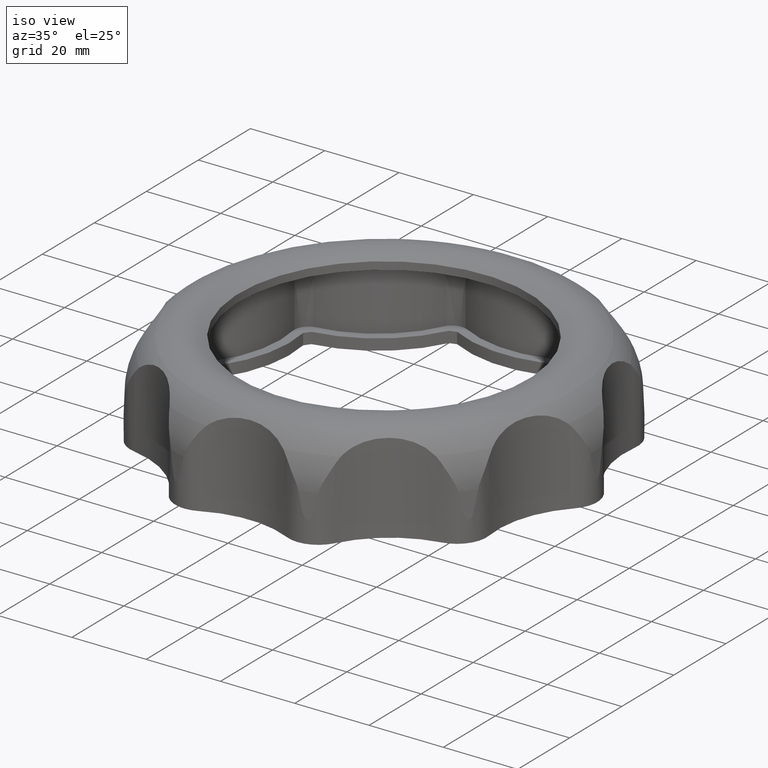
[diagram: clean part render]
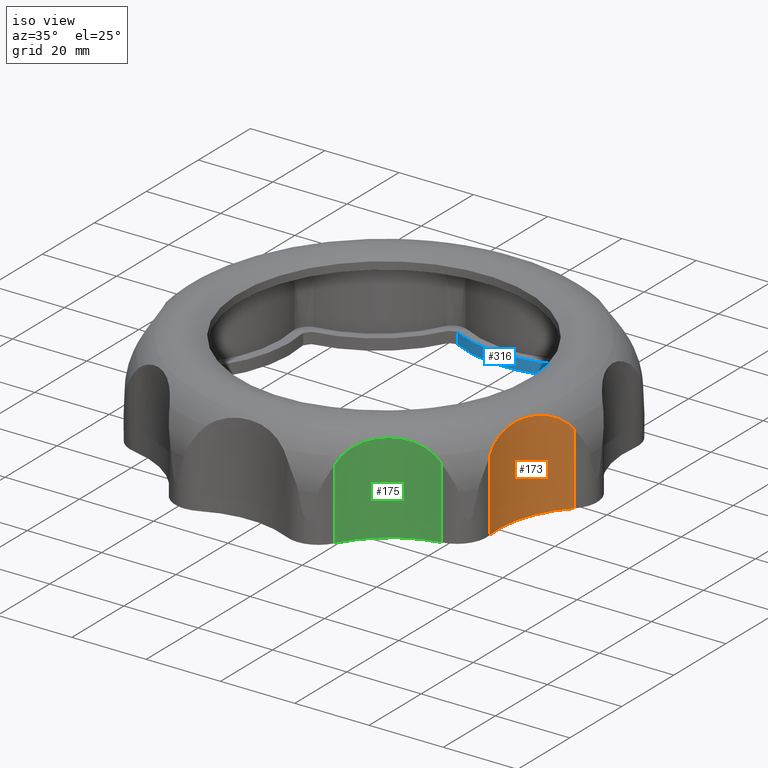
[diagram: same view with three faces highlighted in distinct colors, each labeled with its STEP entity id]
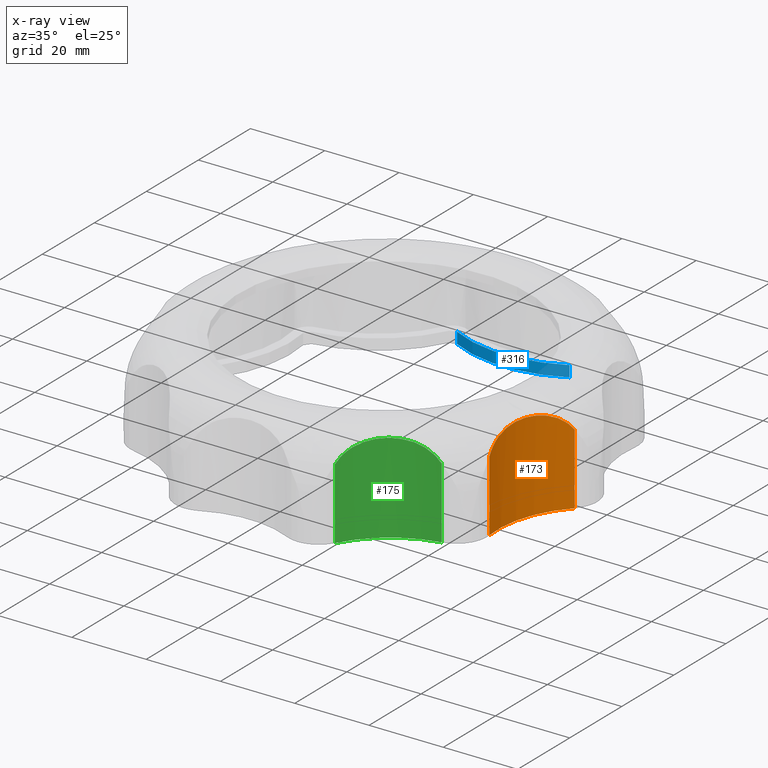
[diagram: x-ray of the same camera — body ghosted, the three highlighted faces saturated]
A machine part, iso view with three faces highlighted in distinct colors.
The next image is the same camera in x-ray (body ghosted, the three faces saturated) — at least one of them is partly hidden behind the body in this view.
Their STEP definitions:

[orange] entity #173 — the highlighted cylindrical surface (partial cylindrical patch) has radius 27 mm, axis along (0, 0, -1).
#173 = ADVANCED_FACE( '', ( #2430 ), #2431, .F. );
#2430 = FACE_OUTER_BOUND( '', #6730, .T. );
#2431 = CYLINDRICAL_SURFACE( '', #6731, 27.0000000000000 );
#6730 = EDGE_LOOP( '', ( #13505, #13506, #13507, #13508, #13509, #13510 ) );
#6731 = AXIS2_PLACEMENT_3D( '', #13511, #13512, #13513 );
#13505 = ORIENTED_EDGE( '', *, *, #31965, .F. );
#13506 = ORIENTED_EDGE( '', *, *, #29841, .T. );
#13507 = ORIENTED_EDGE( '', *, *, #31956, .T. );
#13508 = ORIENTED_EDGE( '', *, *, #31969, .T. );
#13509 = ORIENTED_EDGE( '', *, *, #31970, .T. );
#13510 = ORIENTED_EDGE( '', *, *, #31971, .T. );
#13511 = CARTESIAN_POINT( '', ( 74.6579363793585, -24.2578337864569, -189.776286870924 ) );
#13512 = DIRECTION( '', ( 0.000000000000000, 0.000000000000000, -1.00000000000000 ) );
#13513 = DIRECTION( '', ( -0.990570551828683, -0.137003583346637, 0.000000000000000 ) );
#29841 = EDGE_CURVE( '', #36174, #36172, #36175, .F. );
#31956 = EDGE_CURVE( '', #36172, #40313, #40314, .T. );
#31965 = EDGE_CURVE( '', #36174, #40329, #40330, .T. );
#31969 = EDGE_CURVE( '', #40313, #40336, #40337, .T. );
#31970 = EDGE_CURVE( '', #40336, #40338, #40339, .T. );
#31971 = EDGE_CURVE( '', #40338, #40329, #40340, .T. );
#36172 = VERTEX_POINT( '', #46708 );
#36174 = VERTEX_POINT( '', #46710 );
#36175 = CIRCLE( '', #46711, 27.0000000000000 );
#40313 = VERTEX_POINT( '', #57834 );
#40314 = LINE( '', #57835, #57836 );
#40329 = VERTEX_POINT( '', #57938 );
#40330 = LINE( '', #57939, #57940 );
#40336 = VERTEX_POINT( '', #58001 );
#40337 = B_SPLINE_CURVE_WITH_KNOTS( '', 3, ( #58002, #58003, #58004, #58005 ), .UNSPECIFIED., .F., .F., ( 4, 4 ), ( 3.70980942328956E-007, 0.00218637348059707 ), .UNSPECIFIED. );
#40338 = VERTEX_POINT( '', #58006 );
#40339 = B_SPLINE_CURVE_WITH_KNOTS( '', 3, ( #58007, #58008, #58009, #58010, #58011, #58012, #58013, #58014, #58015, #58016, #58017, #58018, #58019, #58020, #58021, #58022, #58023, #58024, #58025, #58026, #58027, #58028, #58029, #58030, #58031 ), .UNSPECIFIED., .F., .F., ( 4, 2, 2, 2, 2, 2, 1, 2, 2, 2, 2, 2, 4 ), ( 2.99828316993370E-007, 0.00285867238819534, 0.00428785866813452, 0.00571704494807370, 0.00857541750795205, 0.0100046037878912, 0.0114337900678304, 0.0128629763477696, 0.0142921626277088, 0.0171505351875872, 0.0185797214675263, 0.0200089077474655, 0.0228672803073439 ), .UNSPECIFIED. );
#40340 = B_SPLINE_CURVE_WITH_KNOTS( '', 3, ( #58032, #58033, #58034, #58035 ), .UNSPECIFIED., .F., .F., ( 4, 4 ), ( 2.95585429276969E-007, 0.00218629891832316 ), .UNSPECIFIED. );
#46708 = CARTESIAN_POINT( '', ( 55.1947233567197, -5.54464755761343, -25.0456068538120 ) );
#46710 = CARTESIAN_POINT( '', ( 47.9125314799842, -27.9569305368162, -25.0456068538120 ) );
#46711 = AXIS2_PLACEMENT_3D( '', #74129, #74130, #74131 );
#57834 = CARTESIAN_POINT( '', ( 55.1947233567119, -5.54464755762175, -5.85717139452890 ) );
#57835 = CARTESIAN_POINT( '', ( 55.1947233567197, -5.54464755761343, -189.776286870924 ) );
#57836 = VECTOR( '', #74427, 1000.00000000000 );
#57938 = CARTESIAN_POINT( '', ( 47.9125314799842, -27.9569305368162, -5.85717205826600 ) );
#57939 = CARTESIAN_POINT( '', ( 47.9125314799842, -27.9569305368162, -189.776286870924 ) );
#57940 = VECTOR( '', #74430, 1000.00000000000 );
#58001 = CARTESIAN_POINT( '', ( 54.1989996147473, -6.63875587466969, -4.24780252792270 ) );
#58002 = CARTESIAN_POINT( '', ( 55.1947233567119, -5.54464755762135, -5.85717139452865 ) );
#58003 = CARTESIAN_POINT( '', ( 54.8859988724536, -5.86574575698448, -5.27672770354340 ) );
#58004 = CARTESIAN_POINT( '', ( 54.5517459930731, -6.22915351725626, -4.74084185494322 ) );
#58005 = CARTESIAN_POINT( '', ( 54.1989996147472, -6.63875587466937, -4.24780252792253 ) );
#58006 = CARTESIAN_POINT( '', ( 47.7500747064637, -26.4865060800771, -4.24780252792270 ) );
#58007 = CARTESIAN_POINT( '', ( 54.1989996147472, -6.63875587466956, -4.24780252792268 ) );
#58008 = CARTESIAN_POINT( '', ( 53.7208593773605, -7.19396318632837, -3.61225612978650 ) );
#58009 = CARTESIAN_POINT( '', ( 53.2258120750429, -7.81470778294322, -3.08240889827173 ) );
#58010 = CARTESIAN_POINT( '', ( 52.4869430204637, -8.84273924504700, -2.41506273051541 ) );
#58011 = CARTESIAN_POINT( '', ( 52.2411665023910, -9.20165250428693, -2.21406914540628 ) );
#58012 = CARTESIAN_POINT( '', ( 51.7546376443556, -9.95262237334957, -1.85187803921905 ) );
#58013 = CARTESIAN_POINT( '', ( 51.5160411823993, -10.3415414595719, -1.69238300752716 ) );
#58014 = CARTESIAN_POINT( '', ( 50.8268523663201, -11.5329975792221, -1.27634069070291 ) );
#58015 = CARTESIAN_POINT( '', ( 50.3990291374894, -12.3659591733890, -1.07842472565420 ) );
#58016 = CARTESIAN_POINT( '', ( 49.8145796051292, -13.6731543022217, -0.880968779001268 ) );
#58017 = CARTESIAN_POINT( '', ( 49.6298534703620, -14.1176184552536, -0.832260588293811 ) );
#58018 = CARTESIAN_POINT( '', ( 49.2863123656774, -15.0106939058683, -0.768070653094216 ) );
#58019 = CARTESIAN_POINT( '', ( 48.9670044950928, -15.9115622100116, -0.736511588674260 ) );
#58020 = CARTESIAN_POINT( '', ( 48.6959349621179, -16.8279455449997, -0.768170203724727 ) );
#58021 = CARTESIAN_POINT( '', ( 48.4490758183095, -17.7521143826679, -0.832431800201903 ) );
#58022 = CARTESIAN_POINT( '', ( 48.3373340729019, -18.2201554525790, -0.881169731565880 ) );
#58023 = CARTESIAN_POINT( '', ( 48.0419930624103, -19.6207848217476, -1.07867686076912 ) );
#58024 = CARTESIAN_POINT( '', ( 47.8993609645618, -20.5421159972954, -1.27614566043664 ) );
#58025 = CARTESIAN_POINT( '', ( 47.7572770269268, -21.8995493180482, -1.68770865475096 ) );
#58026 = CARTESIAN_POINT( '', ( 47.7219165916782, -22.3478777835019, -1.84432545056501 ) );
#58027 = CARTESIAN_POINT( '', ( 47.6736849582215, -23.2344720828578, -2.20192377785716 ) );
#58028 = CARTESIAN_POINT( '', ( 47.6608344745040, -23.6753755234064, -2.40434584921152 ) );
#58029 = CARTESIAN_POINT( '', ( 47.6534740702647, -24.9578987505156, -3.07820527410402 ) );
#58030 = CARTESIAN_POINT( '', ( 47.6895740516455, -25.7560517842053, -3.61204866731715 ) );
#58031 = CARTESIAN_POINT( '', ( 47.7500747064636, -26.4865060800772, -4.24780252792265 ) );
#58032 = CARTESIAN_POINT( '', ( 47.7500747064635, -26.4865060800774, -4.24780252792250 ) );
#58033 = CARTESIAN_POINT( '', ( 47.7946943098423, -27.0252205959130, -4.74084197301891 ) );
#58034 = CARTESIAN_POINT( '', ( 47.8515048741557, -27.5156927448184, -5.27672802923006 ) );
#58035 = CARTESIAN_POINT( '', ( 47.9125314799841, -27.9569305368164, -5.85717205826580 ) );
#74129 = CARTESIAN_POINT( '', ( 74.6579363793585, -24.2578337864569, -25.0456068538120 ) );
#74130 = DIRECTION( '', ( 1.89212087375327E-017, -5.82334926349610E-017, 1.00000000000000 ) );
#74131 = DIRECTION( '', ( 0.309016994374947, -0.951056516295154, -6.12303176911189E-017 ) );
#74427 = DIRECTION( '', ( 0.000000000000000, 0.000000000000000, 1.00000000000000 ) );
#74430 = DIRECTION( '', ( 0.000000000000000, 0.000000000000000, 1.00000000000000 ) );

[blue] entity #316 — the highlighted cylindrical surface (partial cylindrical patch) has radius 32.5 mm, axis along (0, 0, -1).
#316 = ADVANCED_FACE( '', ( #2725 ), #2726, .T. );
#2725 = FACE_OUTER_BOUND( '', #7025, .T. );
#2726 = CYLINDRICAL_SURFACE( '', #7026, 32.5000000000000 );
#7025 = EDGE_LOOP( '', ( #15330, #15331, #15332, #15333 ) );
#7026 = AXIS2_PLACEMENT_3D( '', #15334, #15335, #15336 );
#15330 = ORIENTED_EDGE( '', *, *, #31719, .T. );
#15331 = ORIENTED_EDGE( '', *, *, #31841, .F. );
#15332 = ORIENTED_EDGE( '', *, *, #29812, .F. );
#15333 = ORIENTED_EDGE( '', *, *, #32985, .T. );
#15334 = CARTESIAN_POINT( '', ( -2.01068044158870E-007, 78.5000004297295, -25.0456068538120 ) );
#15335 = DIRECTION( '', ( 0.000000000000000, 0.000000000000000, -1.00000000000000 ) );
#15336 = DIRECTION( '', ( -0.897086510246755, 0.441854945806086, 0.000000000000000 ) );
#29812 = EDGE_CURVE( '', #36115, #36116, #36117, .T. );
#31719 = EDGE_CURVE( '', #39922, #39923, #39924, .T. );
#31841 = EDGE_CURVE( '', #36116, #39923, #40165, .T. );
#32985 = EDGE_CURVE( '', #36115, #39922, #42220, .T. );
#36115 = VERTEX_POINT( '', #46651 );
#36116 = VERTEX_POINT( '', #46652 );
#36117 = CIRCLE( '', #46653, 32.5000000000000 );
#39922 = VERTEX_POINT( '', #56698 );
#39923 = VERTEX_POINT( '', #56699 );
#39924 = CIRCLE( '', #56700, 32.5000000000000 );
#40165 = LINE( '', #57182, #57183 );
#42220 = LINE( '', #63460, #63461 );
#46651 = CARTESIAN_POINT( '', ( 15.1463783172826, 49.7452231261429, -25.0456068538120 ) );
#46652 = CARTESIAN_POINT( '', ( -15.1463785721150, 49.7452230485517, -25.0456068538120 ) );
#46653 = AXIS2_PLACEMENT_3D( '', #74042, #74043, #74044 );
#56698 = CARTESIAN_POINT( '', ( 15.1463783172826, 49.7452231261429, -22.0456068538120 ) );
#56699 = CARTESIAN_POINT( '', ( -15.1463785721150, 49.7452230485517, -22.0456068538120 ) );
#56700 = AXIS2_PLACEMENT_3D( '', #74202, #74203, #74204 );
#57182 = CARTESIAN_POINT( '', ( -15.1463785721150, 49.7452230485517, -25.0456068538120 ) );
#57183 = VECTOR( '', #74326, 1000.00000000000 );
#63460 = CARTESIAN_POINT( '', ( 15.1463783172826, 49.7452231261429, -25.0456068538120 ) );
#63461 = VECTOR( '', #74603, 1000.00000000000 );
#74042 = CARTESIAN_POINT( '', ( -2.01068044158870E-007, 78.5000004297295, -25.0456068538120 ) );
#74043 = DIRECTION( '', ( 0.000000000000000, 0.000000000000000, -1.00000000000000 ) );
#74044 = DIRECTION( '', ( -0.466042426751283, -0.884762372881993, 0.000000000000000 ) );
#74202 = CARTESIAN_POINT( '', ( -2.01068044158870E-007, 78.5000004297295, -22.0456068538120 ) );
#74203 = DIRECTION( '', ( 0.000000000000000, 0.000000000000000, -1.00000000000000 ) );
#74204 = DIRECTION( '', ( -0.466042426751283, -0.884762372881993, 0.000000000000000 ) );
#74326 = DIRECTION( '', ( 0.000000000000000, 0.000000000000000, 1.00000000000000 ) );
#74603 = DIRECTION( '', ( 0.000000000000000, 0.000000000000000, 1.00000000000000 ) );

[green] entity #175 — the highlighted cylindrical surface (partial cylindrical patch) has radius 27 mm, axis along (0, 0, -1).
#175 = ADVANCED_FACE( '', ( #2434 ), #2435, .F. );
#2434 = FACE_OUTER_BOUND( '', #6734, .T. );
#2435 = CYLINDRICAL_SURFACE( '', #6735, 27.0000000000000 );
#6734 = EDGE_LOOP( '', ( #13523, #13524, #13525, #13526, #13527, #13528 ) );
#6735 = AXIS2_PLACEMENT_3D( '', #13529, #13530, #13531 );
#13523 = ORIENTED_EDGE( '', *, *, #31973, .F. );
#13524 = ORIENTED_EDGE( '', *, *, #29843, .T. );
#13525 = ORIENTED_EDGE( '', *, *, #31964, .T. );
#13526 = ORIENTED_EDGE( '', *, *, #31977, .T. );
#13527 = ORIENTED_EDGE( '', *, *, #31978, .T. );
#13528 = ORIENTED_EDGE( '', *, *, #31979, .T. );
#13529 = CARTESIAN_POINT( '', ( 46.1411423948803, -63.5078345242766, -189.776286870924 ) );
#13530 = DIRECTION( '', ( 0.000000000000000, 0.000000000000000, -1.00000000000000 ) );
#13531 = DIRECTION( '', ( -0.990570551828683, -0.137003583346637, 0.000000000000000 ) );
#29843 = EDGE_CURVE( '', #36178, #36176, #36179, .F. );
#31964 = EDGE_CURVE( '', #36176, #40327, #40328, .T. );
#31973 = EDGE_CURVE( '', #36178, #40343, #40344, .T. );
#31977 = EDGE_CURVE( '', #40327, #40350, #40351, .T. );
#31978 = EDGE_CURVE( '', #40350, #40352, #40353, .T. );
#31979 = EDGE_CURVE( '', #40352, #40343, #40354, .T. );
#36176 = VERTEX_POINT( '', #46712 );
#36178 = VERTEX_POINT( '', #46714 );
#36179 = CIRCLE( '', #46715, 27.0000000000000 );
#40327 = VERTEX_POINT( '', #57935 );
#40328 = LINE( '', #57936, #57937 );
#40343 = VERTEX_POINT( '', #58039 );
#40344 = LINE( '', #58040, #58041 );
#40350 = VERTEX_POINT( '', #58102 );
#40351 = B_SPLINE_CURVE_WITH_KNOTS( '', 3, ( #58103, #58104, #58105, #58106 ), .UNSPECIFIED., .F., .F., ( 4, 4 ), ( 3.30289096002830E-007, 0.00218633426610848 ), .UNSPECIFIED. );
#40352 = VERTEX_POINT( '', #58107 );
#40353 = B_SPLINE_CURVE_WITH_KNOTS( '', 3, ( #58108, #58109, #58110, #58111, #58112, #58113, #58114, #58115, #58116, #58117, #58118, #58119, #58120, #58121, #58122, #58123, #58124, #58125, #58126, #58127, #58128, #58129, #58130, #58131, #58132 ), .UNSPECIFIED., .F., .F., ( 4, 2, 2, 2, 2, 2, 1, 2, 2, 2, 2, 2, 4 ), ( 2.99828333299476E-007, 0.00285867205690388, 0.00428785817118916, 0.00571704428547445, 0.00857541651404503, 0.0100046026283303, 0.0114337887426156, 0.0128629748569009, 0.0142921609711862, 0.0171505331997568, 0.0185797193140421, 0.0200089054283274, 0.0228672776568980 ), .UNSPECIFIED. );
#40354 = B_SPLINE_CURVE_WITH_KNOTS( '', 3, ( #58133, #58134, #58135, #58136 ), .UNSPECIFIED., .F., .F., ( 4, 4 ), ( 2.95585308706837E-007, 0.00218629985848760 ), .UNSPECIFIED. );
#46712 = CARTESIAN_POINT( '', ( 41.3944071406749, -36.9283592768891, -25.0456068538120 ) );
#46714 = CARTESIAN_POINT( '', ( 22.3293811023367, -50.7799115143383, -25.0456068538120 ) );
#46715 = AXIS2_PLACEMENT_3D( '', #74135, #74136, #74137 );
#57935 = CARTESIAN_POINT( '', ( 41.3944071406659, -36.9283592768908, -5.85717250615360 ) );
#57936 = CARTESIAN_POINT( '', ( 41.3944071406749, -36.9283592768891, -189.776286870924 ) );
#57937 = VECTOR( '', #74429, 1000.00000000000 );
#58039 = CARTESIAN_POINT( '', ( 22.3293811023413, -50.7799115143297, -5.85717274211110 ) );
#58040 = CARTESIAN_POINT( '', ( 22.3293811023367, -50.7799115143383, -189.776286870924 ) );
#58041 = VECTOR( '', #74432, 1000.00000000000 );
#58102 = CARTESIAN_POINT( '', ( 39.9457480309387, -37.2282399940097, -4.24780252792270 ) );
#58103 = CARTESIAN_POINT( '', ( 41.3944071406661, -36.9283592768907, -5.85717250615344 ) );
#58104 = CARTESIAN_POINT( '', ( 40.9559066800591, -37.0066695360654, -5.27672829467783 ) );
#58105 = CARTESIAN_POINT( '', ( 40.4718843668986, -37.1042037541537, -4.74084209048340 ) );
#58106 = CARTESIAN_POINT( '', ( 39.9457480309389, -37.2282399940095, -4.24780252792251 ) );
#58107 = CARTESIAN_POINT( '', ( 23.0622449883733, -49.4948229100688, -4.24780252792270 ) );
#58108 = CARTESIAN_POINT( '', ( 39.9457480309387, -37.2282399940096, -4.24780252792265 ) );
#58109 = CARTESIAN_POINT( '', ( 39.2325818435898, -37.3963683786605, -3.61225623756190 ) );
#58110 = CARTESIAN_POINT( '', ( 38.4672157220130, -37.6075798105957, -3.08240909394324 ) );
#58111 = CARTESIAN_POINT( '', ( 37.2651965053875, -38.0049783946130, -2.41506303452081 ) );
#58112 = CARTESIAN_POINT( '', ( 36.8553952540019, -38.1508815033015, -2.21406948155707 ) );
#58113 = CARTESIAN_POINT( '', ( 36.0203762298607, -38.4724543852560, -1.85187843240960 ) );
#58114 = CARTESIAN_POINT( '', ( 35.5987467808561, -38.6468530451579, -1.69238342230852 ) );
#58115 = CARTESIAN_POINT( '', ( 34.3408611304173, -39.2056662335607, -1.27634116394995 ) );
#58116 = CARTESIAN_POINT( '', ( 33.5051424304036, -39.6280780963526, -1.07842522537795 ) );
#58117 = CARTESIAN_POINT( '', ( 32.2639629646109, -40.3420902754959, -0.880969304483945 ) );
#58118 = CARTESIAN_POINT( '', ( 31.8532669516743, -40.5930900061404, -0.832261118830788 ) );
#58119 = CARTESIAN_POINT( '', ( 31.0503998700153, -41.1136747708888, -0.768071190912747 ) );
#58120 = CARTESIAN_POINT( '', ( 30.2625573846829, -41.6548080500282, -0.736512266445545 ) );
#58121 = CARTESIAN_POINT( '', ( 29.5046209784070, -42.2368469597008, -0.768170741320433 ) );
#58122 = CARTESIAN_POINT( '', ( 28.7616950066976, -42.8394150081525, -0.832432329117773 ) );
#58123 = CARTESIAN_POINT( '', ( 28.3961864425053, -43.1523879892437, -0.881170252806049 ) );
#58124 = CARTESIAN_POINT( '', ( 27.3339813480271, -44.1119237457907, -1.07867735882223 ) );
#58125 = CARTESIAN_POINT( '', ( 26.6770447355724, -44.7734591935037, -1.27614613505918 ) );
#58126 = CARTESIAN_POINT( '', ( 25.7642172049791, -45.7881308307465, -1.68770906925754 ) );
#58127 = CARTESIAN_POINT( '', ( 25.4720891759768, -46.1300517853723, -1.84432584079489 ) );
#58128 = CARTESIAN_POINT( '', ( 24.9119419563493, -46.8189716922229, -2.20192410745435 ) );
#58129 = CARTESIAN_POINT( '', ( 24.6423891799373, -47.1681166851854, -2.40434613946775 ) );
#58130 = CARTESIAN_POINT( '', ( 23.8825862716308, -48.2013733153394, -3.07820546500124 ) );
#58131 = CARTESIAN_POINT( '', ( 23.4426491943042, -48.8683116444404, -3.61204877552085 ) );
#58132 = CARTESIAN_POINT( '', ( 23.0622449883733, -49.4948229100688, -4.24780252792264 ) );
#58133 = CARTESIAN_POINT( '', ( 23.0622449883731, -49.4948229100689, -4.24780252792249 ) );
#58134 = CARTESIAN_POINT( '', ( 22.7816942743731, -49.9568792705421, -4.74084238623921 ) );
#58135 = CARTESIAN_POINT( '', ( 22.5393626026135, -50.3870721361822, -5.27672871080676 ) );
#58136 = CARTESIAN_POINT( '', ( 22.3293811023409, -50.7799115143300, -5.85717274211065 ) );
#74135 = CARTESIAN_POINT( '', ( 46.1411423948803, -63.5078345242766, -25.0456068538120 ) );
#74136 = DIRECTION( '', ( 1.89212087375327E-017, -5.82334926349610E-017, 1.00000000000000 ) );
#74137 = DIRECTION( '', ( 0.309016994374947, -0.951056516295154, -6.12303176911189E-017 ) );
#74429 = DIRECTION( '', ( 0.000000000000000, 0.000000000000000, 1.00000000000000 ) );
#74432 = DIRECTION( '', ( 0.000000000000000, 0.000000000000000, 1.00000000000000 ) );